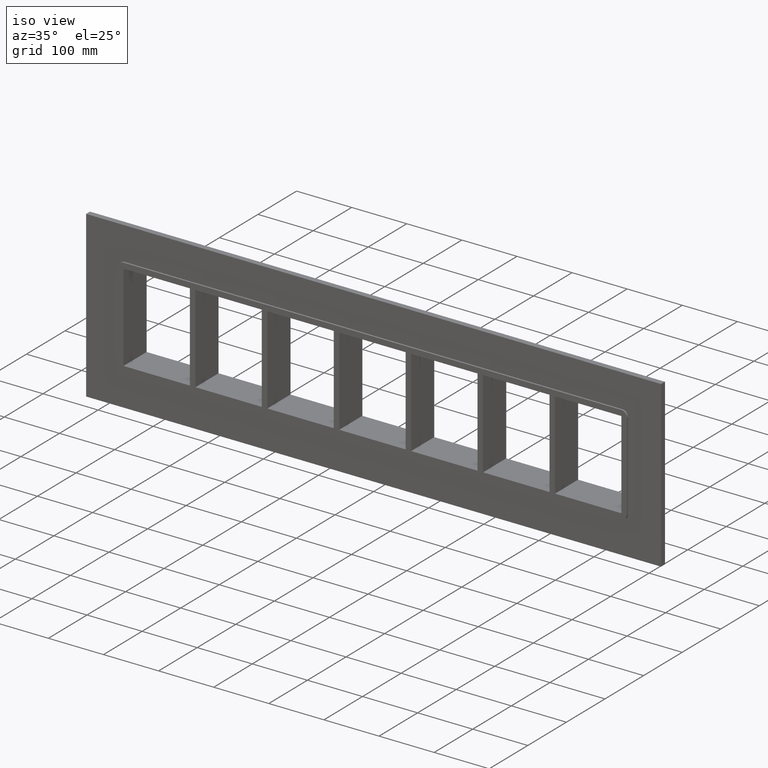
[diagram: clean part render]
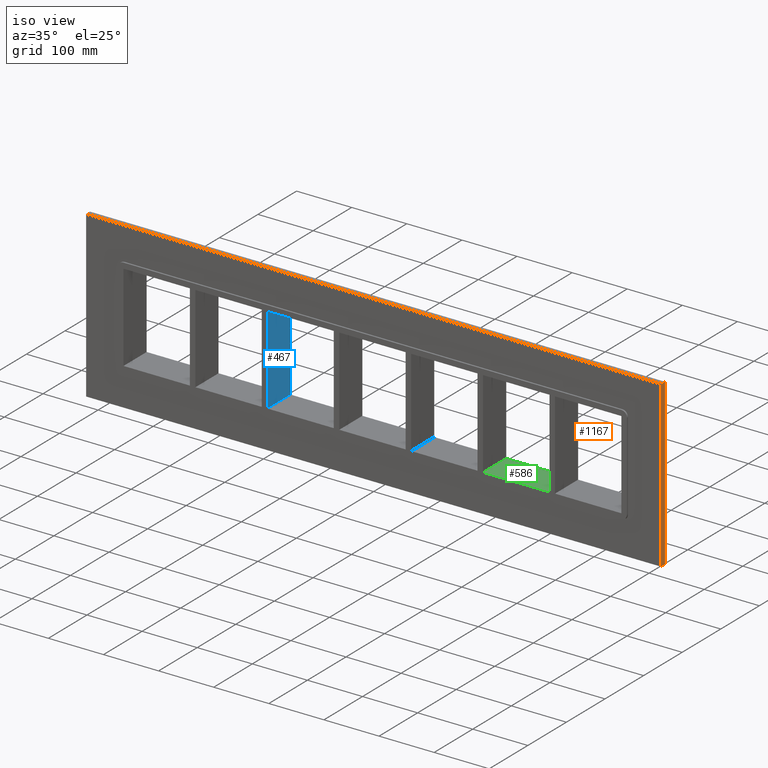
[diagram: same view with three faces highlighted in distinct colors, each labeled with its STEP entity id]
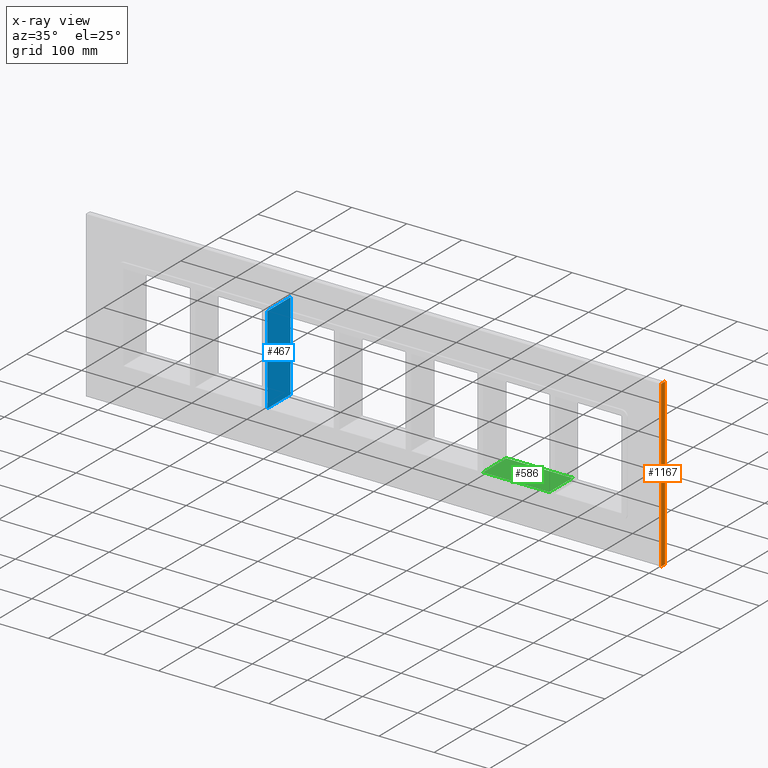
[diagram: x-ray of the same camera — body ghosted, the three highlighted faces saturated]
A machine part, iso view with three faces highlighted in distinct colors.
The next image is the same camera in x-ray (body ghosted, the three faces saturated) — at least one of them is partly hidden behind the body in this view.
Their STEP definitions:

[orange] entity #1167 — the highlighted planar face has unit normal (1, 0, 0).
#899=CARTESIAN_POINT('',(521.75000000000023,10.0,149.75));
#900=VERTEX_POINT('',#899);
#907=CARTESIAN_POINT('',(521.75000000000023,10.0,-149.75));
#908=VERTEX_POINT('',#907);
#909=CARTESIAN_POINT('',(521.75000000000011,10.0,149.75));
#910=DIRECTION('',(0.0,0.0,-1.0));
#911=VECTOR('',#910,299.5);
#912=LINE('',#909,#911);
#913=EDGE_CURVE('',#900,#908,#912,.T.);
#1009=CARTESIAN_POINT('',(521.75000000000011,0.0,149.75));
#1010=VERTEX_POINT('',#1009);
#1025=CARTESIAN_POINT('',(521.75000000000011,0.0,-149.75000000000003));
#1026=VERTEX_POINT('',#1025);
#1033=CARTESIAN_POINT('',(521.75000000000011,0.0,149.75));
#1034=DIRECTION('',(0.0,0.0,-1.0));
#1035=VECTOR('',#1034,299.5);
#1036=LINE('',#1033,#1035);
#1037=EDGE_CURVE('',#1010,#1026,#1036,.T.);
#1142=CARTESIAN_POINT('',(521.75000000000011,0.0,-149.75000000000003));
#1143=DIRECTION('',(0.0,1.0,0.0));
#1144=VECTOR('',#1143,10.0);
#1145=LINE('',#1142,#1144);
#1146=EDGE_CURVE('',#1026,#908,#1145,.T.);
#1151=CARTESIAN_POINT('',(521.75000000000011,0.0,149.75));
#1152=DIRECTION('',(1.0,0.0,0.0));
#1153=DIRECTION('',(0.0,0.0,-1.0));
#1154=AXIS2_PLACEMENT_3D('',#1151,#1152,#1153);
#1155=PLANE('',#1154);
#1156=ORIENTED_EDGE('',*,*,#1037,.T.);
#1157=ORIENTED_EDGE('',*,*,#1146,.T.);
#1158=ORIENTED_EDGE('',*,*,#913,.F.);
#1159=CARTESIAN_POINT('',(521.75000000000011,0.0,149.75));
#1160=DIRECTION('',(0.0,1.0,0.0));
#1161=VECTOR('',#1160,10.0);
#1162=LINE('',#1159,#1161);
#1163=EDGE_CURVE('',#1010,#900,#1162,.T.);
#1164=ORIENTED_EDGE('',*,*,#1163,.F.);
#1165=EDGE_LOOP('',(#1156,#1157,#1158,#1164));
#1166=FACE_OUTER_BOUND('',#1165,.T.);
#1167=ADVANCED_FACE('',(#1166),#1155,.T.);

[blue] entity #467 — the highlighted planar face has unit normal (1, 0, 0).
#428=CARTESIAN_POINT('',(-190.75,-3.0,79.750000000000014));
#429=DIRECTION('',(1.0,0.0,0.0));
#430=DIRECTION('',(0.0,0.0,-1.0));
#431=AXIS2_PLACEMENT_3D('',#428,#429,#430);
#432=PLANE('',#431);
#433=CARTESIAN_POINT('',(-190.75,-3.0,79.750000000000014));
#434=VERTEX_POINT('',#433);
#435=CARTESIAN_POINT('',(-190.75,-3.0,-79.74999999998407));
#436=VERTEX_POINT('',#435);
#437=CARTESIAN_POINT('',(-190.75,-3.0,79.750000000000014));
#438=DIRECTION('',(0.0,0.0,-1.0));
#439=VECTOR('',#438,159.49999999998408);
#440=LINE('',#437,#439);
#441=EDGE_CURVE('',#434,#436,#440,.T.);
#442=ORIENTED_EDGE('',*,*,#441,.T.);
#443=CARTESIAN_POINT('',(-190.75,57.0,-79.749999999984055));
#444=VERTEX_POINT('',#443);
#445=CARTESIAN_POINT('',(-190.75000000000003,57.000000000000007,-79.75));
#446=DIRECTION('',(0.0,-1.0,0.0));
#447=VECTOR('',#446,60.000000000000007);
#448=LINE('',#445,#447);
#449=EDGE_CURVE('',#444,#436,#448,.T.);
#450=ORIENTED_EDGE('',*,*,#449,.F.);
#451=CARTESIAN_POINT('',(-190.75,57.0,79.750000000000014));
#452=VERTEX_POINT('',#451);
#453=CARTESIAN_POINT('',(-190.75,57.0,79.750000000000014));
#454=DIRECTION('',(0.0,0.0,-1.0));
#455=VECTOR('',#454,159.49999999998408);
#456=LINE('',#453,#455);
#457=EDGE_CURVE('',#452,#444,#456,.T.);
#458=ORIENTED_EDGE('',*,*,#457,.F.);
#459=CARTESIAN_POINT('',(-190.74999999999994,-3.0,79.750000000000014));
#460=DIRECTION('',(0.0,1.0,0.0));
#461=VECTOR('',#460,60.000000000000007);
#462=LINE('',#459,#461);
#463=EDGE_CURVE('',#434,#452,#462,.T.);
#464=ORIENTED_EDGE('',*,*,#463,.F.);
#465=EDGE_LOOP('',(#442,#450,#458,#464));
#466=FACE_OUTER_BOUND('',#465,.T.);
#467=ADVANCED_FACE('',(#466),#432,.T.);

[green] entity #586 — the highlighted planar face has unit normal (0, 0, -1).
#73=CARTESIAN_POINT('',(321.24999999999858,-3.0,-79.75));
#74=VERTEX_POINT('',#73);
#91=CARTESIAN_POINT('',(321.24999999999858,57.0,-79.75));
#92=VERTEX_POINT('',#91);
#99=CARTESIAN_POINT('',(321.24999999999858,-3.0,-79.75));
#100=DIRECTION('',(0.0,1.0,0.0));
#101=VECTOR('',#100,60.000000000000007);
#102=LINE('',#99,#101);
#103=EDGE_CURVE('',#74,#92,#102,.T.);
#195=CARTESIAN_POINT('',(200.75000000000006,-3.0,-79.74999999998407));
#196=VERTEX_POINT('',#195);
#203=CARTESIAN_POINT('',(200.75000000000006,57.0,-79.749999999984055));
#204=VERTEX_POINT('',#203);
#205=CARTESIAN_POINT('',(200.75000000000003,57.000000000000007,-79.75));
#206=DIRECTION('',(0.0,-1.0,0.0));
#207=VECTOR('',#206,60.000000000000007);
#208=LINE('',#205,#207);
#209=EDGE_CURVE('',#204,#196,#208,.T.);
#565=CARTESIAN_POINT('',(451.75000000000011,0.0,-79.75));
#566=DIRECTION('',(0.0,0.0,-1.0));
#567=DIRECTION('',(-1.0,0.0,0.0));
#568=AXIS2_PLACEMENT_3D('',#565,#566,#567);
#569=PLANE('',#568);
#570=ORIENTED_EDGE('',*,*,#103,.T.);
#571=CARTESIAN_POINT('',(200.75000000000006,57.0,-79.75));
#572=DIRECTION('',(1.0,0.0,0.0));
#573=VECTOR('',#572,120.49999999999852);
#574=LINE('',#571,#573);
#575=EDGE_CURVE('',#204,#92,#574,.T.);
#576=ORIENTED_EDGE('',*,*,#575,.F.);
#577=ORIENTED_EDGE('',*,*,#209,.T.);
#578=CARTESIAN_POINT('',(321.24999999999858,-3.0,-79.75));
#579=DIRECTION('',(-1.0,0.0,0.0));
#580=VECTOR('',#579,120.49999999999852);
#581=LINE('',#578,#580);
#582=EDGE_CURVE('',#74,#196,#581,.T.);
#583=ORIENTED_EDGE('',*,*,#582,.F.);
#584=EDGE_LOOP('',(#570,#576,#577,#583));
#585=FACE_OUTER_BOUND('',#584,.T.);
#586=ADVANCED_FACE('',(#585),#569,.F.);